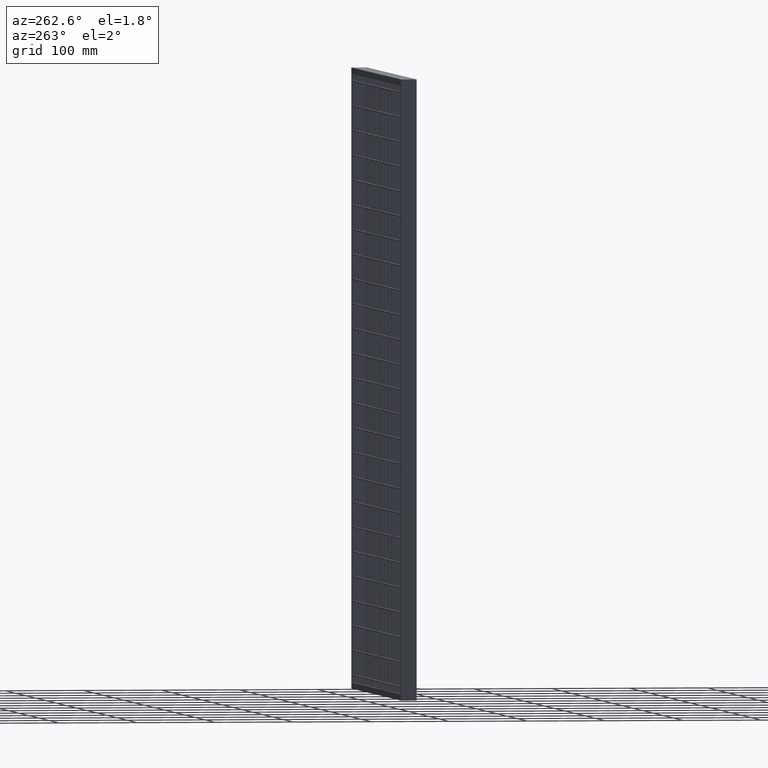
[diagram: clean part render]
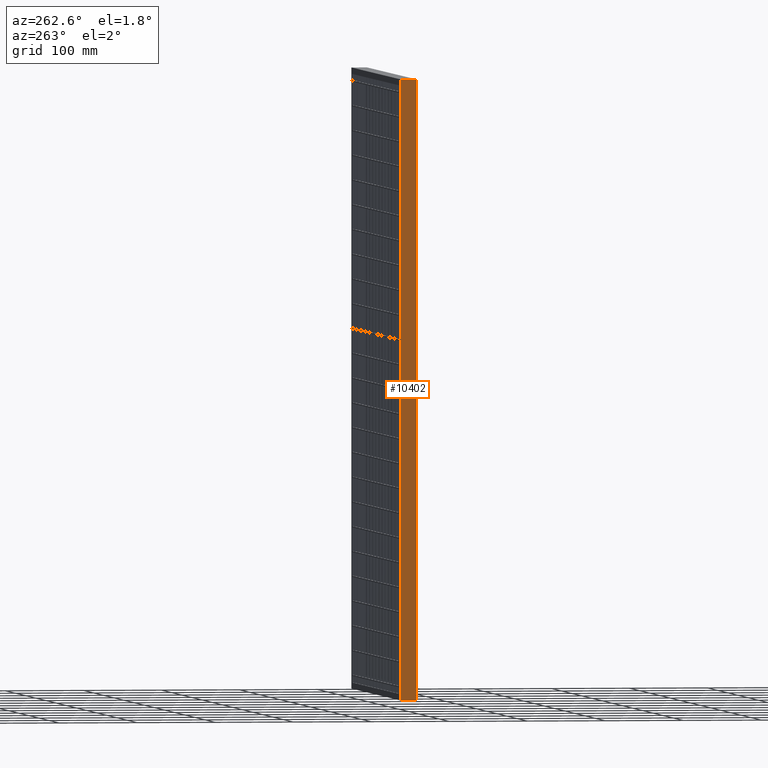
[diagram: same view with one face highlighted and labeled with its STEP entity id]
A machine part, auxiliary view. The second image highlights one B-rep face of the part: STEP entity #10402.
In plain terms, the highlighted planar face has unit normal (-1, -0, 0).
Its self-contained STEP definition (entity closure, byte-faithful):
#1920 = EDGE_CURVE ( 'NONE', #37253, #54812, #20964, .T. ) ;
#2600 = EDGE_CURVE ( 'NONE', #19456, #50595, #43245, .T. ) ;
#3573 = ORIENTED_EDGE ( 'NONE', *, *, #11300, .T. ) ;
#9718 = VECTOR ( 'NONE', #47387, 1000.000000000000000 ) ;
#10402 = ADVANCED_FACE ( 'NONE', ( #23627 ), #52775, .T. ) ;
#10859 = EDGE_CURVE ( 'NONE', #19456, #37253, #31964, .T. ) ;
#10922 = DIRECTION ( 'NONE',  ( -0.0000000000000000000, -0.0000000000000000000, 1.000000000000000000 ) ) ;
#11300 = EDGE_CURVE ( 'NONE', #54812, #50595, #43110, .T. ) ;
#14889 = ORIENTED_EDGE ( 'NONE', *, *, #10859, .T. ) ;
#15152 = CARTESIAN_POINT ( 'NONE',  ( 1.020538999289461500E-015, -3.333333333333335700, 0.0000000000000000000 ) ) ;
#16553 = CARTESIAN_POINT ( 'NONE',  ( -3.061616997868381900E-015, 10.00000000000000000, -790.0000000000000000 ) ) ;
#19456 = VERTEX_POINT ( 'NONE', #16553 ) ;
#20964 = LINE ( 'NONE', #33584, #9718 ) ;
#21216 = ORIENTED_EDGE ( 'NONE', *, *, #2600, .F. ) ;
#23627 = FACE_OUTER_BOUND ( 'NONE', #46820, .T. ) ;
#24942 = VECTOR ( 'NONE', #10922, 1000.000000000000000 ) ;
#25355 = DIRECTION ( 'NONE',  ( 3.061616997868382200E-016, -1.000000000000000000, 3.061616997868382200E-016 ) ) ;
#25720 = ORIENTED_EDGE ( 'NONE', *, *, #1920, .T. ) ;
#27286 = AXIS2_PLACEMENT_3D ( 'NONE', #52418, #30093, #39181 ) ;
#28848 = CARTESIAN_POINT ( 'NONE',  ( -1.020538999289461100E-015, 3.333333333333333900, 0.0000000000000000000 ) ) ;
#28993 = CARTESIAN_POINT ( 'NONE',  ( -3.061616997868382300E-015, 10.00000000000000000, -833.0813184570761200 ) ) ;
#29151 = VECTOR ( 'NONE', #25355, 1000.000000000000000 ) ;
#29894 = CARTESIAN_POINT ( 'NONE',  ( -3.061616997868386200E-015, 10.00000000000001400, -790.0000000000000000 ) ) ;
#30093 = DIRECTION ( 'NONE',  ( -1.000000000000000000, -3.061616997868382200E-016, 0.0000000000000000000 ) ) ;
#31964 = LINE ( 'NONE', #29894, #29151 ) ;
#33584 = CARTESIAN_POINT ( 'NONE',  ( 3.061616997868383000E-015, -10.00000000000000000, -833.0813184570761200 ) ) ;
#36872 = CARTESIAN_POINT ( 'NONE',  ( 1.665334536937733000E-013, 10.00000000000000200, -9.877583447104201300E-014 ) ) ;
#37253 = VERTEX_POINT ( 'NONE', #55746 ) ;
#37533 = CARTESIAN_POINT ( 'NONE',  ( 1.530808498934191500E-015, -10.00000000000000000, -1.110223024625156500E-013 ) ) ;
#37916 = CARTESIAN_POINT ( 'NONE',  ( 1.665334536937733000E-013, 10.00000000000000200, -9.877583447104201300E-014 ) ) ;
#39181 = DIRECTION ( 'NONE',  ( 3.061616997868382200E-016, -1.000000000000000000, 0.0000000000000000000 ) ) ;
#43110 = B_SPLINE_CURVE_WITH_KNOTS ( 'NONE', 3,
 ( #37533, #15152, #28848, #37916 ),
 .UNSPECIFIED., .F., .F.,
 ( 4, 4 ),
 ( 0.0000000000000000000, 1.000000000000000000 ),
 .UNSPECIFIED. ) ;
#43245 = LINE ( 'NONE', #28993, #24942 ) ;
#46820 = EDGE_LOOP ( 'NONE', ( #25720, #3573, #21216, #14889 ) ) ;
#47387 = DIRECTION ( 'NONE',  ( -0.0000000000000000000, -0.0000000000000000000, 1.000000000000000000 ) ) ;
#48371 = CARTESIAN_POINT ( 'NONE',  ( 1.530808498934191500E-015, -10.00000000000000000, -1.110223024625156500E-013 ) ) ;
#50595 = VERTEX_POINT ( 'NONE', #36872 ) ;
#52418 = CARTESIAN_POINT ( 'NONE',  ( -3.061616997868382300E-015, 10.00000000000000000, -833.0813184570761200 ) ) ;
#52775 = PLANE ( 'NONE',  #27286 ) ;
#54812 = VERTEX_POINT ( 'NONE', #48371 ) ;
#55746 = CARTESIAN_POINT ( 'NONE',  ( 3.061616997868383000E-015, -10.00000000000000000, -790.0000000000000000 ) ) ;